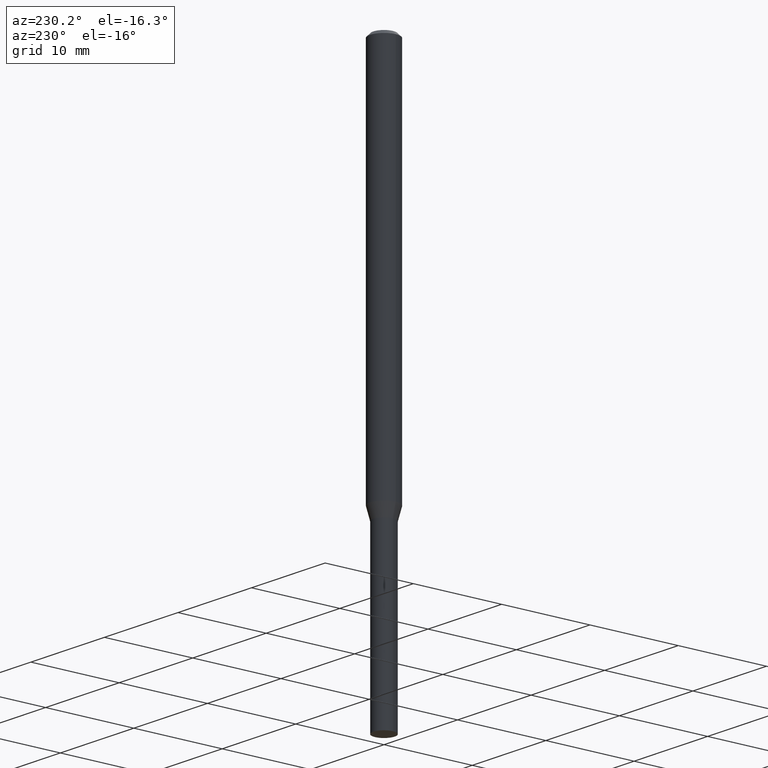
[diagram: clean part render]
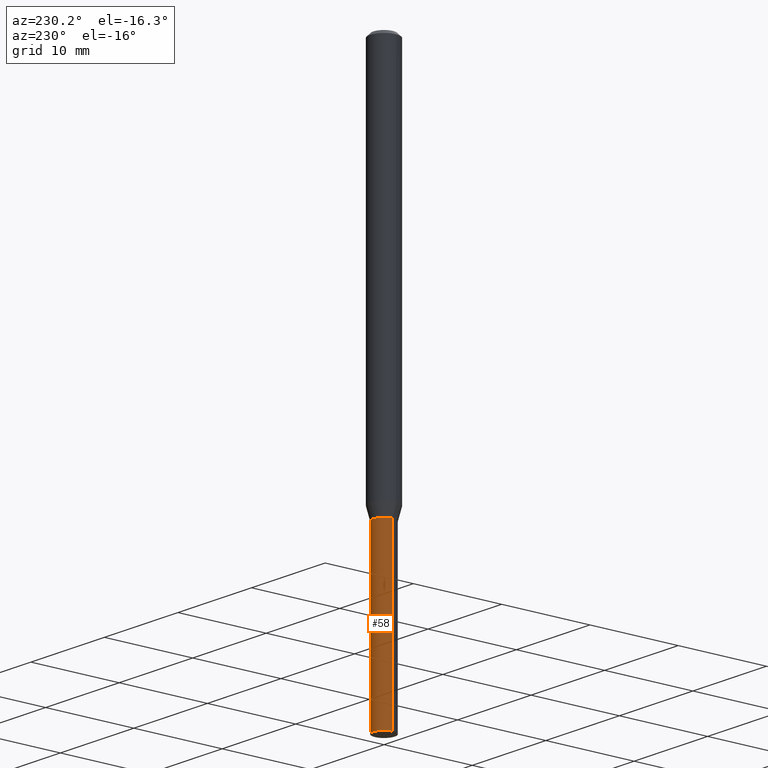
[diagram: same view with one face highlighted and labeled with its STEP entity id]
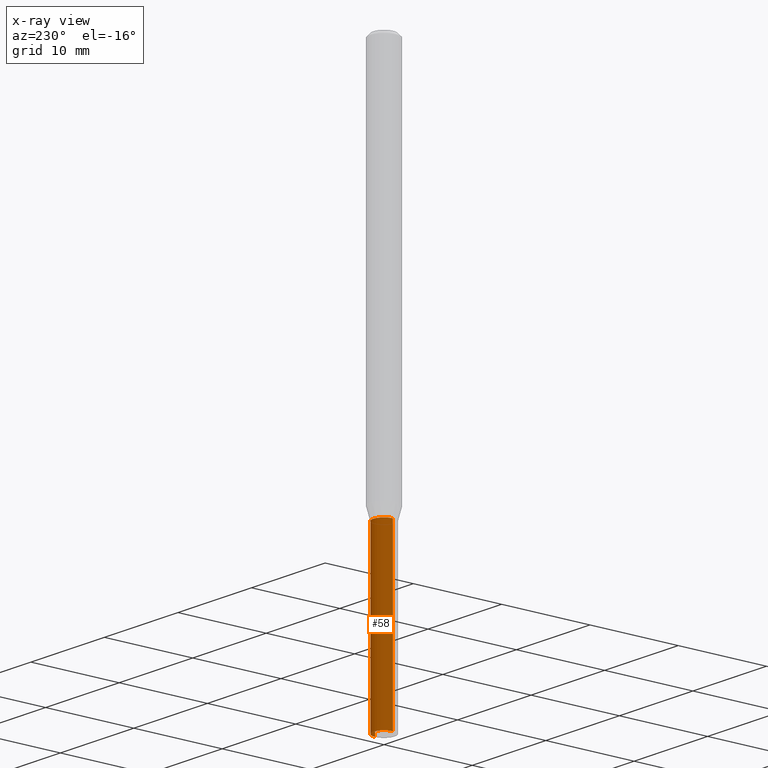
[diagram: x-ray of the same camera — body ghosted, the highlighted face saturated]
A machine part, auxiliary view. The second image highlights one B-rep face of the part: STEP entity #58.
The next image is the same camera in x-ray: the body ghosted, the highlighted face saturated — about 0% of this face is hidden behind the body in this view.
In plain terms, the highlighted cylindrical surface (edge-blend (fillet) strip) has radius 1.2065 mm, axis along (-0, 0, 1).
Its self-contained STEP definition (entity closure, byte-faithful):
#4 = EDGE_CURVE ( 'NONE', #295, #342, #119, .T. ) ;
#17 = DIRECTION ( 'NONE',  ( 1.000000000000000000, -6.982962677686283277E-15, 0.000000000000000000 ) ) ;
#46 = EDGE_CURVE ( 'NONE', #80, #112, #307, .T. ) ;
#47 = CARTESIAN_POINT ( 'NONE',  ( -0.04749999999999999362, -7.064432638861422672E-15, -2.500000000000000000 ) ) ;
#58 = ADVANCED_FACE ( 'NONE', ( #135 ), #96, .T. ) ;
#63 = CARTESIAN_POINT ( 'NONE',  ( 0.000000000000000000, 0.000000000000000000, 0.000000000000000000 ) ) ;
#76 = ORIENTED_EDGE ( 'NONE', *, *, #4, .T. ) ;
#80 = VERTEX_POINT ( 'NONE', #282 ) ;
#96 = CYLINDRICAL_SURFACE ( 'NONE', #338, 0.04749999999999999362 ) ;
#112 = VERTEX_POINT ( 'NONE', #170 ) ;
#114 = CARTESIAN_POINT ( 'NONE',  ( -0.04749999999999999362, 3.375077994860475429E-16, -2.336494167871079910E-30 ) ) ;
#119 = CIRCLE ( 'NONE', #190, 0.04749999999999999362 ) ;
#135 = FACE_OUTER_BOUND ( 'NONE', #160, .T. ) ;
#139 = VECTOR ( 'NONE', #292, 39.37007874015748143 ) ;
#150 = LINE ( 'NONE', #306, #333 ) ;
#157 = ORIENTED_EDGE ( 'NONE', *, *, #442, .F. ) ;
#160 = EDGE_LOOP ( 'NONE', ( #76, #271, #220, #157 ) ) ;
#170 = CARTESIAN_POINT ( 'NONE',  ( -0.04749999999999999362, -7.064432638861422672E-15, -1.740000000000000213 ) ) ;
#186 = LINE ( 'NONE', #114, #139 ) ;
#190 = AXIS2_PLACEMENT_3D ( 'NONE', #232, #199, #17 ) ;
#199 = DIRECTION ( 'NONE',  ( -2.445468806185136597E-29, 3.491481338843145583E-15, 1.000000000000000000 ) ) ;
#220 = ORIENTED_EDGE ( 'NONE', *, *, #46, .F. ) ;
#232 = CARTESIAN_POINT ( 'NONE',  ( 6.113672015462842613E-29, -8.728703347107864943E-15, -2.500000000000000000 ) ) ;
#250 = AXIS2_PLACEMENT_3D ( 'NONE', #378, #277, #322 ) ;
#271 = ORIENTED_EDGE ( 'NONE', *, *, #284, .T. ) ;
#277 = DIRECTION ( 'NONE',  ( -2.445468806185136597E-29, 3.491481338843145583E-15, 1.000000000000000000 ) ) ;
#282 = CARTESIAN_POINT ( 'NONE',  ( 0.04749999999999999362, -6.406868256777172111E-15, -1.740000000000000213 ) ) ;
#284 = EDGE_CURVE ( 'NONE', #342, #112, #186, .T. ) ;
#285 = DIRECTION ( 'NONE',  ( 1.000000000000000000, -6.982962677686267499E-15, 4.876176775795935793E-29 ) ) ;
#292 = DIRECTION ( 'NONE',  ( -2.445468806185136877E-29, 3.491481338843145188E-15, 1.000000000000000000 ) ) ;
#295 = VERTEX_POINT ( 'NONE', #401 ) ;
#306 = CARTESIAN_POINT ( 'NONE',  ( 0.04749999999999999362, -3.316907271900976589E-16, 2.316183968503069081E-30 ) ) ;
#307 = CIRCLE ( 'NONE', #250, 0.04749999999999999362 ) ;
#322 = DIRECTION ( 'NONE',  ( 1.000000000000000000, -6.982962677686261977E-15, 0.000000000000000000 ) ) ;
#333 = VECTOR ( 'NONE', #441, 39.37007874015748143 ) ;
#338 = AXIS2_PLACEMENT_3D ( 'NONE', #63, #462, #285 ) ;
#342 = VERTEX_POINT ( 'NONE', #47 ) ;
#378 = CARTESIAN_POINT ( 'NONE',  ( 4.255115722762138620E-29, -6.075177529587074600E-15, -1.740000000000000213 ) ) ;
#401 = CARTESIAN_POINT ( 'NONE',  ( 0.04749999999999999362, -9.060394074297963242E-15, -2.500000000000000000 ) ) ;
#441 = DIRECTION ( 'NONE',  ( -2.445468806185136877E-29, 3.491481338843145188E-15, 1.000000000000000000 ) ) ;
#442 = EDGE_CURVE ( 'NONE', #295, #80, #150, .T. ) ;
#462 = DIRECTION ( 'NONE',  ( -2.445468806185136597E-29, 3.491481338843145583E-15, 1.000000000000000000 ) ) ;